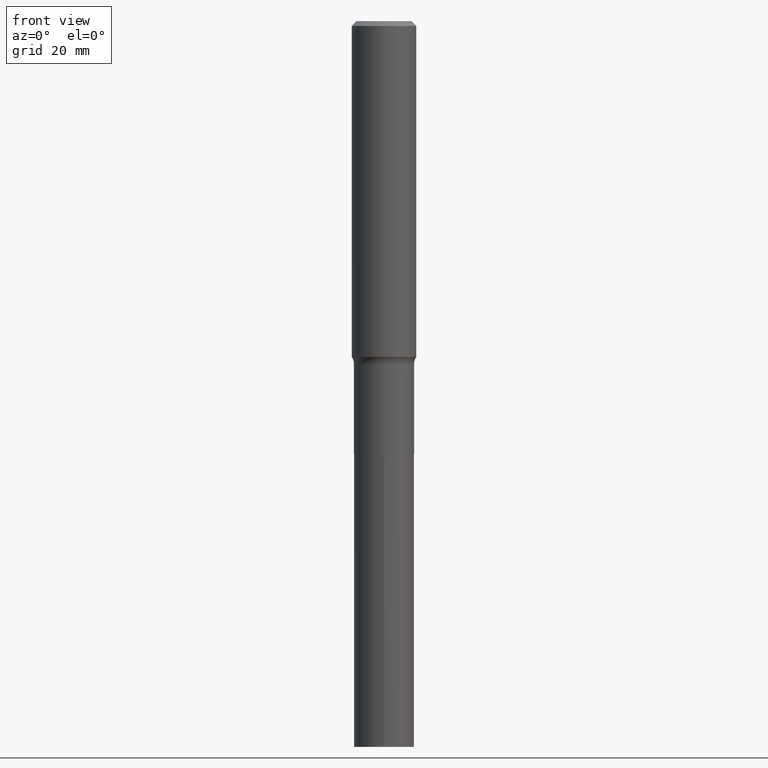
[diagram: clean part render]
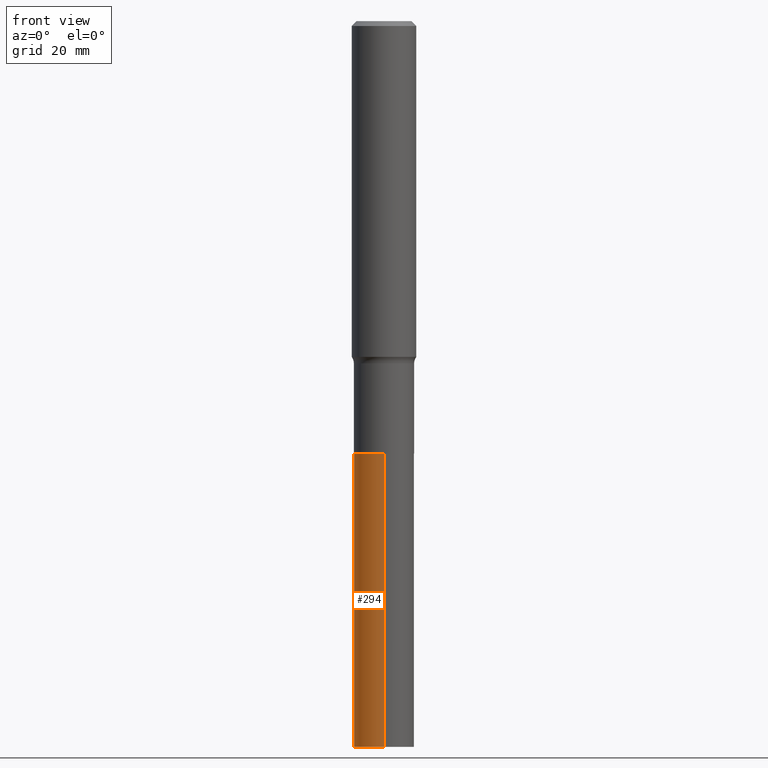
[diagram: same view with one face highlighted and labeled with its STEP entity id]
A machine part, front view. The second image highlights one B-rep face of the part: STEP entity #294.
In plain terms, the highlighted cylindrical surface (edge-blend (fillet) strip) has radius 5.5994 mm, axis along (-0, 0, 1).
Its self-contained STEP definition (entity closure, byte-faithful):
#8 = DIRECTION ( 'NONE',  ( -2.445734654523707896E-29, 3.491100628891162670E-15, 1.000000000000000000 ) ) ;
#25 = DIRECTION ( 'NONE',  ( -2.445734654523707896E-29, 3.491100628891162670E-15, 1.000000000000000000 ) ) ;
#38 = DIRECTION ( 'NONE',  ( -2.445734654523708177E-29, 3.491100628891163064E-15, 1.000000000000000000 ) ) ;
#44 = DIRECTION ( 'NONE',  ( -6.982962677686266711E-15, -1.000000000000000000, 2.478428662884339509E-15 ) ) ;
#65 = VERTEX_POINT ( 'NONE', #338 ) ;
#68 = AXIS2_PLACEMENT_3D ( 'NONE', #215, #38, #44 ) ;
#79 = CYLINDRICAL_SURFACE ( 'NONE', #68, 0.2204500000000000071 ) ;
#82 = VECTOR ( 'NONE', #25, 39.37007874015748143 ) ;
#115 = EDGE_CURVE ( 'NONE', #268, #65, #398, .T. ) ;
#132 = CARTESIAN_POINT ( 'NONE',  ( 7.742354240382144770E-29, -1.105402991877740236E-14, -3.166000000000000814 ) ) ;
#140 = AXIS2_PLACEMENT_3D ( 'NONE', #132, #389, #430 ) ;
#144 = CARTESIAN_POINT ( 'NONE',  ( -1.539394122295859956E-15, -0.2204500000000110538, -3.165999999999999925 ) ) ;
#208 = EDGE_CURVE ( 'NONE', #65, #413, #346, .T. ) ;
#215 = CARTESIAN_POINT ( 'NONE',  ( 7.742354240382144770E-29, -1.105402991877740236E-14, -3.166000000000000814 ) ) ;
#250 = CARTESIAN_POINT ( 'NONE',  ( 1.566391460983218021E-15, 0.2204499999999889326, -3.166000000000001258 ) ) ;
#253 = DIRECTION ( 'NONE',  ( -6.982962677686266711E-15, -1.000000000000000000, 4.956857325768679019E-15 ) ) ;
#254 = EDGE_CURVE ( 'NONE', #268, #267, #377, .T. ) ;
#256 = CARTESIAN_POINT ( 'NONE',  ( 1.566391460983244448E-15, 0.2204499999999814663, -5.315000000000003055 ) ) ;
#267 = VERTEX_POINT ( 'NONE', #402 ) ;
#268 = VERTEX_POINT ( 'NONE', #256 ) ;
#269 = AXIS2_PLACEMENT_3D ( 'NONE', #369, #336, #253 ) ;
#281 = ORIENTED_EDGE ( 'NONE', *, *, #208, .F. ) ;
#294 = ADVANCED_FACE ( 'NONE', ( #358 ), #79, .T. ) ;
#304 = ORIENTED_EDGE ( 'NONE', *, *, #307, .T. ) ;
#305 = CARTESIAN_POINT ( 'NONE',  ( -1.539394122295859956E-15, -0.2204500000000110538, -3.165999999999999925 ) ) ;
#307 = EDGE_CURVE ( 'NONE', #267, #413, #330, .T. ) ;
#316 = ORIENTED_EDGE ( 'NONE', *, *, #115, .F. ) ;
#330 = LINE ( 'NONE', #144, #404 ) ;
#336 = DIRECTION ( 'NONE',  ( -2.445734654523708177E-29, 3.491100628891163064E-15, 1.000000000000000000 ) ) ;
#338 = CARTESIAN_POINT ( 'NONE',  ( 1.566391460983270875E-15, 0.2204499999999889326, -3.166000000000001258 ) ) ;
#346 = CIRCLE ( 'NONE', #140, 0.2204500000000000071 ) ;
#358 = FACE_OUTER_BOUND ( 'NONE', #422, .T. ) ;
#369 = CARTESIAN_POINT ( 'NONE',  ( 1.299823801295359673E-28, -1.855640517026451512E-14, -5.315000000000001279 ) ) ;
#377 = CIRCLE ( 'NONE', #269, 0.2204500000000000071 ) ;
#389 = DIRECTION ( 'NONE',  ( -2.445734654523708177E-29, 3.491100628891163064E-15, 1.000000000000000000 ) ) ;
#398 = LINE ( 'NONE', #250, #82 ) ;
#402 = CARTESIAN_POINT ( 'NONE',  ( -1.539394122295807300E-15, -0.2204500000000185478, -5.315000000000000391 ) ) ;
#404 = VECTOR ( 'NONE', #8, 39.37007874015748143 ) ;
#413 = VERTEX_POINT ( 'NONE', #305 ) ;
#422 = EDGE_LOOP ( 'NONE', ( #316, #452, #304, #281 ) ) ;
#430 = DIRECTION ( 'NONE',  ( -6.982962677686266711E-15, -1.000000000000000000, 2.478428662884339509E-15 ) ) ;
#452 = ORIENTED_EDGE ( 'NONE', *, *, #254, .T. ) ;